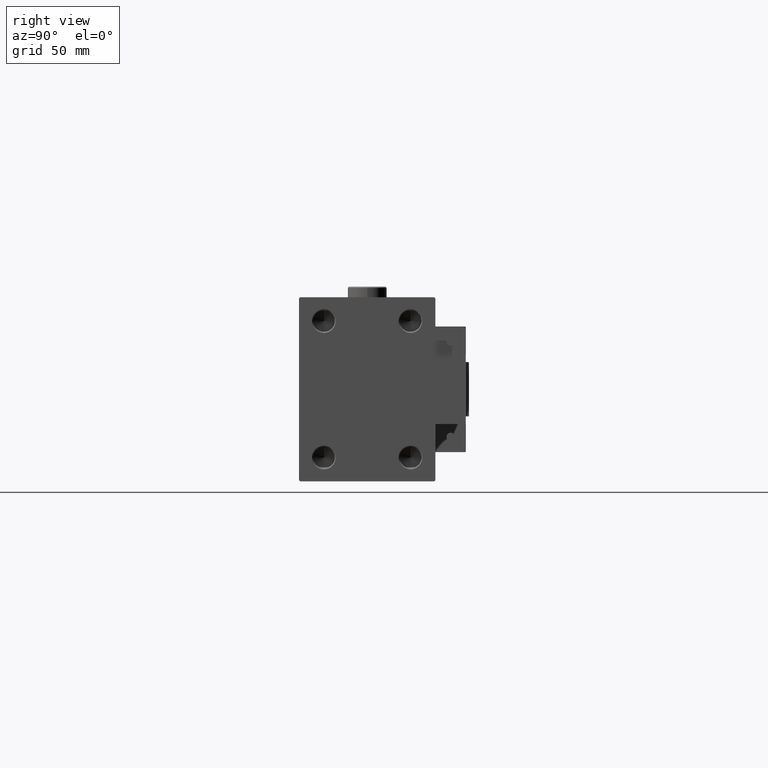
[diagram: clean part render]
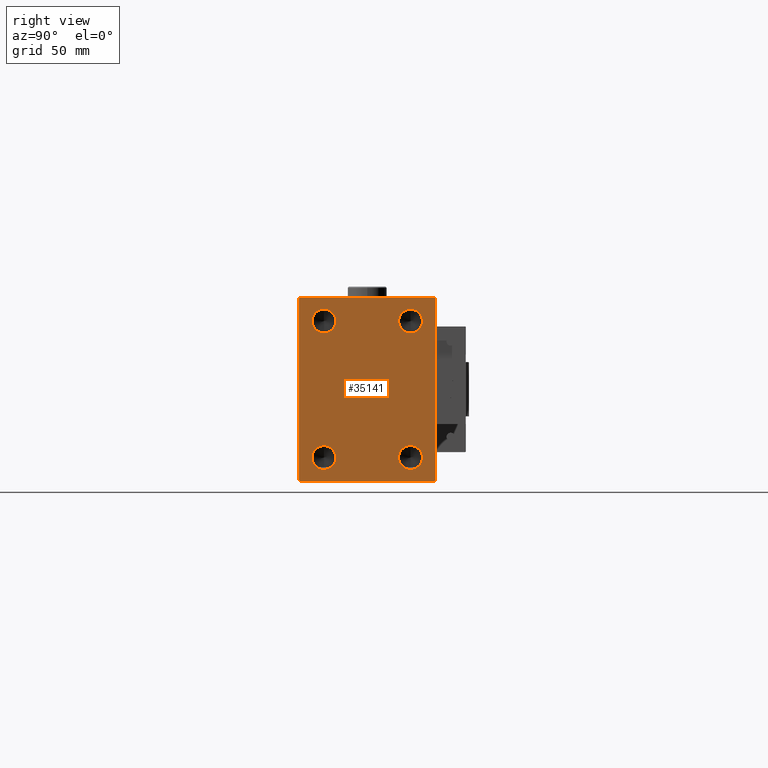
[diagram: same view with one face highlighted and labeled with its STEP entity id]
A machine part, right view. The second image highlights one B-rep face of the part: STEP entity #35141.
In plain terms, the highlighted planar face has unit normal (1, 0, 0).
Its self-contained STEP definition (entity closure, byte-faithful):
#459 = VECTOR ( 'NONE', #43580, 1000.000000000000000 ) ;
#1417 = VECTOR ( 'NONE', #4331, 1000.000000000000000 ) ;
#1504 = CARTESIAN_POINT ( 'NONE',  ( 183.0000000000000000, -20.00000000000000355, 31.50000000000000000 ) ) ;
#1866 = VERTEX_POINT ( 'NONE', #26205 ) ;
#1920 = DIRECTION ( 'NONE',  ( 1.000000000000000000, -0.000000000000000000, -0.000000000000000000 ) ) ;
#2151 = VECTOR ( 'NONE', #13738, 999.9999999999998863 ) ;
#2652 = CARTESIAN_POINT ( 'NONE',  ( 183.0000000000000000, -31.50000000000000000, 42.49999999999998579 ) ) ;
#3179 = VERTEX_POINT ( 'NONE', #24857 ) ;
#3227 = CIRCLE ( 'NONE', #34490, 5.500000000000032863 ) ;
#3540 = CIRCLE ( 'NONE', #52741, 5.500000000000032863 ) ;
#3694 = CARTESIAN_POINT ( 'NONE',  ( 183.0000000000000000, -31.00000000000002842, 42.49999999999998579 ) ) ;
#4331 = DIRECTION ( 'NONE',  ( 0.000000000000000000, -1.000000000000000000, -1.101411730778925171E-16 ) ) ;
#4944 = VERTEX_POINT ( 'NONE', #48789 ) ;
#5041 = CARTESIAN_POINT ( 'NONE',  ( 183.0000000000000000, 36.75000000000001421, -36.75000000000001421 ) ) ;
#6270 = EDGE_CURVE ( 'NONE', #3179, #28652, #41006, .T. ) ;
#6672 = ORIENTED_EDGE ( 'NONE', *, *, #8779, .T. ) ;
#7053 = DIRECTION ( 'NONE',  ( 0.000000000000000000, 0.000000000000000000, -1.000000000000000000 ) ) ;
#7468 = CIRCLE ( 'NONE', #43225, 5.500000000000032863 ) ;
#7596 = VERTEX_POINT ( 'NONE', #50402 ) ;
#8779 = EDGE_CURVE ( 'NONE', #15934, #4944, #30999, .T. ) ;
#8953 = ORIENTED_EDGE ( 'NONE', *, *, #29754, .F. ) ;
#9174 = DIRECTION ( 'NONE',  ( 0.000000000000000000, 1.000000000000000000, 0.000000000000000000 ) ) ;
#9449 = ORIENTED_EDGE ( 'NONE', *, *, #40104, .F. ) ;
#9549 = CARTESIAN_POINT ( 'NONE',  ( 183.0000000000000000, -36.75000000000022737, -36.74999999999971578 ) ) ;
#10287 = ORIENTED_EDGE ( 'NONE', *, *, #36520, .F. ) ;
#10305 = DIRECTION ( 'NONE',  ( 1.000000000000000000, -0.000000000000000000, -0.000000000000000000 ) ) ;
#10625 = EDGE_CURVE ( 'NONE', #32762, #53934, #37714, .T. ) ;
#10926 = EDGE_LOOP ( 'NONE', ( #43087, #22627, #29306, #15576, #6672, #15911, #28795, #34993 ) ) ;
#11130 = AXIS2_PLACEMENT_3D ( 'NONE', #35765, #44733, #14496 ) ;
#11412 = CARTESIAN_POINT ( 'NONE',  ( 183.0000000000000000, 19.99999999999999645, 31.50000000000000000 ) ) ;
#11446 = DIRECTION ( 'NONE',  ( 0.000000000000000000, 0.000000000000000000, -1.000000000000000000 ) ) ;
#11736 = VECTOR ( 'NONE', #19727, 1000.000000000000000 ) ;
#12457 = FACE_BOUND ( 'NONE', #25437, .T. ) ;
#13381 = CIRCLE ( 'NONE', #42900, 5.500000000000032863 ) ;
#13382 = VERTEX_POINT ( 'NONE', #55117 ) ;
#13553 = DIRECTION ( 'NONE',  ( 1.000000000000000000, 0.000000000000000000, 0.000000000000000000 ) ) ;
#13678 = DIRECTION ( 'NONE',  ( 0.000000000000000000, 0.000000000000000000, -1.000000000000000000 ) ) ;
#13738 = DIRECTION ( 'NONE',  ( -0.000000000000000000, 0.7071067811865425767, -0.7071067811865525687 ) ) ;
#14011 = CARTESIAN_POINT ( 'NONE',  ( 183.0000000000000000, 31.00000000000002842, 42.49999999999999289 ) ) ;
#14496 = DIRECTION ( 'NONE',  ( 0.000000000000000000, 0.000000000000000000, -1.000000000000000000 ) ) ;
#15576 = ORIENTED_EDGE ( 'NONE', *, *, #51549, .T. ) ;
#15911 = ORIENTED_EDGE ( 'NONE', *, *, #32929, .T. ) ;
#15934 = VERTEX_POINT ( 'NONE', #40825 ) ;
#16650 = EDGE_LOOP ( 'NONE', ( #52139, #9449 ) ) ;
#16946 = DIRECTION ( 'NONE',  ( 0.000000000000000000, 0.000000000000000000, -1.000000000000000000 ) ) ;
#17500 = FACE_BOUND ( 'NONE', #47007, .T. ) ;
#17953 = VECTOR ( 'NONE', #9174, 1000.000000000000000 ) ;
#18996 = DIRECTION ( 'NONE',  ( 0.000000000000000000, 0.000000000000000000, -1.000000000000000000 ) ) ;
#19727 = DIRECTION ( 'NONE',  ( 0.000000000000000000, 0.000000000000000000, -1.000000000000000000 ) ) ;
#21413 = FACE_BOUND ( 'NONE', #46523, .T. ) ;
#22136 = LINE ( 'NONE', #9549, #2151 ) ;
#22197 = DIRECTION ( 'NONE',  ( 0.000000000000000000, 0.000000000000000000, -1.000000000000000000 ) ) ;
#22627 = ORIENTED_EDGE ( 'NONE', *, *, #55343, .T. ) ;
#23030 = VERTEX_POINT ( 'NONE', #35498 ) ;
#23992 = DIRECTION ( 'NONE',  ( 0.000000000000000000, 0.000000000000000000, -1.000000000000000000 ) ) ;
#24117 = CARTESIAN_POINT ( 'NONE',  ( 183.0000000000000000, -20.00000000000000355, 31.50000000000000000 ) ) ;
#24857 = CARTESIAN_POINT ( 'NONE',  ( 183.0000000000000000, -31.50000000000000000, 42.00000000000001421 ) ) ;
#25437 = EDGE_LOOP ( 'NONE', ( #10287, #44562 ) ) ;
#25719 = LINE ( 'NONE', #38338, #459 ) ;
#26069 = LINE ( 'NONE', #52129, #36264 ) ;
#26205 = CARTESIAN_POINT ( 'NONE',  ( 183.0000000000000000, 31.50000000000001421, -42.00000000000000711 ) ) ;
#26342 = DIRECTION ( 'NONE',  ( 0.000000000000000000, -0.7071067811865474617, -0.7071067811865474617 ) ) ;
#27689 = DIRECTION ( 'NONE',  ( 1.000000000000000000, -0.000000000000000000, -0.000000000000000000 ) ) ;
#27916 = DIRECTION ( 'NONE',  ( 1.000000000000000000, -0.000000000000000000, -0.000000000000000000 ) ) ;
#28040 = DIRECTION ( 'NONE',  ( 1.000000000000000000, -0.000000000000000000, -0.000000000000000000 ) ) ;
#28652 = VERTEX_POINT ( 'NONE', #48748 ) ;
#28795 = ORIENTED_EDGE ( 'NONE', *, *, #28821, .T. ) ;
#28821 = EDGE_CURVE ( 'NONE', #1866, #32762, #25719, .T. ) ;
#29029 = EDGE_CURVE ( 'NONE', #53934, #33759, #51116, .T. ) ;
#29306 = ORIENTED_EDGE ( 'NONE', *, *, #6270, .T. ) ;
#29754 = EDGE_CURVE ( 'NONE', #23030, #13382, #45232, .T. ) ;
#29905 = CARTESIAN_POINT ( 'NONE',  ( 183.0000000000000000, -31.50000000000000000, -42.50000000000000711 ) ) ;
#30973 = EDGE_CURVE ( 'NONE', #43953, #55289, #3227, .T. ) ;
#30999 = LINE ( 'NONE', #29905, #17953 ) ;
#31907 = VERTEX_POINT ( 'NONE', #42239 ) ;
#31954 = VECTOR ( 'NONE', #51819, 1000.000000000000114 ) ;
#32128 = DIRECTION ( 'NONE',  ( 0.000000000000000000, 0.000000000000000000, -1.000000000000000000 ) ) ;
#32448 = CARTESIAN_POINT ( 'NONE',  ( 183.0000000000000000, -20.00000000000000355, -31.50000000000000000 ) ) ;
#32552 = CIRCLE ( 'NONE', #11130, 5.500000000000032863 ) ;
#32762 = VERTEX_POINT ( 'NONE', #32806 ) ;
#32806 = CARTESIAN_POINT ( 'NONE',  ( 183.0000000000000000, 31.50000000000000000, 42.00000000000002132 ) ) ;
#32929 = EDGE_CURVE ( 'NONE', #4944, #1866, #52650, .T. ) ;
#33759 = VERTEX_POINT ( 'NONE', #3694 ) ;
#34465 = CARTESIAN_POINT ( 'NONE',  ( 183.0000000000000000, -20.00000000000000355, -25.99999999999996447 ) ) ;
#34490 = AXIS2_PLACEMENT_3D ( 'NONE', #1504, #52188, #22197 ) ;
#34716 = AXIS2_PLACEMENT_3D ( 'NONE', #24117, #28040, #7053 ) ;
#34993 = ORIENTED_EDGE ( 'NONE', *, *, #10625, .T. ) ;
#35141 = ADVANCED_FACE ( 'NONE', ( #50853, #12457, #17500, #21413, #38767 ), #55323, .T. ) ;
#35498 = CARTESIAN_POINT ( 'NONE',  ( 183.0000000000000000, 19.99999999999999645, -25.99999999999996447 ) ) ;
#35519 = CARTESIAN_POINT ( 'NONE',  ( 183.0000000000000000, 19.99999999999999645, -31.50000000000000000 ) ) ;
#35765 = CARTESIAN_POINT ( 'NONE',  ( 183.0000000000000000, 19.99999999999999645, -31.50000000000000000 ) ) ;
#36264 = VECTOR ( 'NONE', #26342, 1000.000000000000114 ) ;
#36332 = CARTESIAN_POINT ( 'NONE',  ( 183.0000000000000000, -20.00000000000000355, -31.50000000000000000 ) ) ;
#36520 = EDGE_CURVE ( 'NONE', #55289, #43953, #48175, .T. ) ;
#37020 = CARTESIAN_POINT ( 'NONE',  ( 183.0000000000000000, -20.00000000000000355, 25.99999999999996447 ) ) ;
#37714 = LINE ( 'NONE', #45867, #48424 ) ;
#38310 = EDGE_CURVE ( 'NONE', #45076, #41483, #13381, .T. ) ;
#38338 = CARTESIAN_POINT ( 'NONE',  ( 183.0000000000000000, 31.50000000000001421, -42.50000000000000711 ) ) ;
#38426 = ORIENTED_EDGE ( 'NONE', *, *, #50034, .F. ) ;
#38767 = FACE_OUTER_BOUND ( 'NONE', #10926, .T. ) ;
#38934 = AXIS2_PLACEMENT_3D ( 'NONE', #35519, #43655, #13678 ) ;
#39953 = ORIENTED_EDGE ( 'NONE', *, *, #52237, .F. ) ;
#40104 = EDGE_CURVE ( 'NONE', #7596, #31907, #49232, .T. ) ;
#40825 = CARTESIAN_POINT ( 'NONE',  ( 183.0000000000000000, -31.00000000000000000, -42.50000000000000711 ) ) ;
#41006 = LINE ( 'NONE', #2652, #11736 ) ;
#41030 = CARTESIAN_POINT ( 'NONE',  ( 183.0000000000000000, -20.00000000000000355, -37.00000000000003553 ) ) ;
#41214 = EDGE_CURVE ( 'NONE', #31907, #7596, #3540, .T. ) ;
#41483 = VERTEX_POINT ( 'NONE', #41030 ) ;
#42239 = CARTESIAN_POINT ( 'NONE',  ( 183.0000000000000000, 19.99999999999999645, 37.00000000000003553 ) ) ;
#42900 = AXIS2_PLACEMENT_3D ( 'NONE', #32448, #27689, #11446 ) ;
#43087 = ORIENTED_EDGE ( 'NONE', *, *, #29029, .T. ) ;
#43171 = CARTESIAN_POINT ( 'NONE',  ( 183.0000000000000000, -20.00000000000000355, 37.00000000000003553 ) ) ;
#43225 = AXIS2_PLACEMENT_3D ( 'NONE', #36332, #10305, #32128 ) ;
#43580 = DIRECTION ( 'NONE',  ( 0.000000000000000000, -1.632680918566406547E-16, 1.000000000000000000 ) ) ;
#43655 = DIRECTION ( 'NONE',  ( 1.000000000000000000, -0.000000000000000000, -0.000000000000000000 ) ) ;
#43659 = AXIS2_PLACEMENT_3D ( 'NONE', #51129, #13553, #16946 ) ;
#43953 = VERTEX_POINT ( 'NONE', #37020 ) ;
#44562 = ORIENTED_EDGE ( 'NONE', *, *, #30973, .F. ) ;
#44733 = DIRECTION ( 'NONE',  ( 1.000000000000000000, -0.000000000000000000, -0.000000000000000000 ) ) ;
#45076 = VERTEX_POINT ( 'NONE', #34465 ) ;
#45232 = CIRCLE ( 'NONE', #38934, 5.500000000000032863 ) ;
#45690 = ORIENTED_EDGE ( 'NONE', *, *, #38310, .F. ) ;
#45867 = CARTESIAN_POINT ( 'NONE',  ( 183.0000000000000000, 36.75000000000001421, 36.75000000000001421 ) ) ;
#46523 = EDGE_LOOP ( 'NONE', ( #8953, #39953 ) ) ;
#47007 = EDGE_LOOP ( 'NONE', ( #45690, #38426 ) ) ;
#47166 = CARTESIAN_POINT ( 'NONE',  ( 183.0000000000000000, 31.50000000000000000, 42.49999999999999289 ) ) ;
#48175 = CIRCLE ( 'NONE', #34716, 5.500000000000032863 ) ;
#48424 = VECTOR ( 'NONE', #54537, 1000.000000000000114 ) ;
#48748 = CARTESIAN_POINT ( 'NONE',  ( 183.0000000000000000, -31.50000000000000000, -42.00000000000000000 ) ) ;
#48789 = CARTESIAN_POINT ( 'NONE',  ( 183.0000000000000000, 31.00000000000001421, -42.50000000000000711 ) ) ;
#48950 = CARTESIAN_POINT ( 'NONE',  ( 183.0000000000000000, 19.99999999999999645, 31.50000000000000000 ) ) ;
#49232 = CIRCLE ( 'NONE', #51037, 5.500000000000032863 ) ;
#50034 = EDGE_CURVE ( 'NONE', #41483, #45076, #7468, .T. ) ;
#50402 = CARTESIAN_POINT ( 'NONE',  ( 183.0000000000000000, 19.99999999999999645, 25.99999999999996447 ) ) ;
#50853 = FACE_BOUND ( 'NONE', #16650, .T. ) ;
#51037 = AXIS2_PLACEMENT_3D ( 'NONE', #48950, #27916, #23992 ) ;
#51116 = LINE ( 'NONE', #47166, #1417 ) ;
#51129 = CARTESIAN_POINT ( 'NONE',  ( 183.0000000000000000, 0.000000000000000000, 0.000000000000000000 ) ) ;
#51549 = EDGE_CURVE ( 'NONE', #28652, #15934, #22136, .T. ) ;
#51819 = DIRECTION ( 'NONE',  ( -0.000000000000000000, 0.7071067811865474617, 0.7071067811865474617 ) ) ;
#52129 = CARTESIAN_POINT ( 'NONE',  ( 183.0000000000000000, -36.75000000000001421, 36.75000000000001421 ) ) ;
#52139 = ORIENTED_EDGE ( 'NONE', *, *, #41214, .F. ) ;
#52188 = DIRECTION ( 'NONE',  ( 1.000000000000000000, -0.000000000000000000, -0.000000000000000000 ) ) ;
#52237 = EDGE_CURVE ( 'NONE', #13382, #23030, #32552, .T. ) ;
#52650 = LINE ( 'NONE', #5041, #31954 ) ;
#52741 = AXIS2_PLACEMENT_3D ( 'NONE', #11412, #1920, #18996 ) ;
#53934 = VERTEX_POINT ( 'NONE', #14011 ) ;
#54537 = DIRECTION ( 'NONE',  ( -0.000000000000000000, -0.7071067811865474617, 0.7071067811865474617 ) ) ;
#55117 = CARTESIAN_POINT ( 'NONE',  ( 183.0000000000000000, 19.99999999999999645, -37.00000000000003553 ) ) ;
#55289 = VERTEX_POINT ( 'NONE', #43171 ) ;
#55323 = PLANE ( 'NONE',  #43659 ) ;
#55343 = EDGE_CURVE ( 'NONE', #33759, #3179, #26069, .T. ) ;